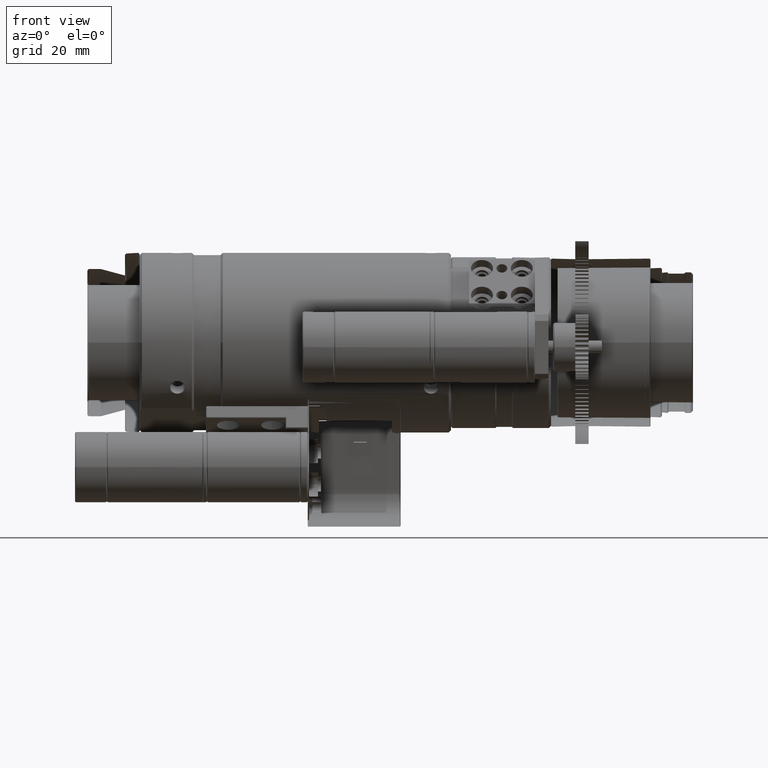
[diagram: clean part render]
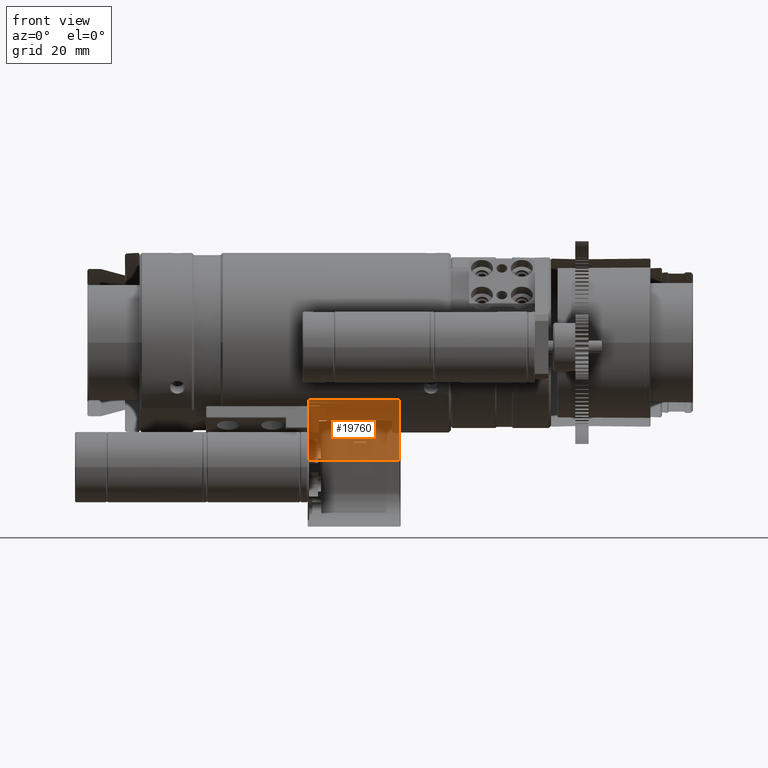
[diagram: same view with one face highlighted and labeled with its STEP entity id]
A machine part, front view. The second image highlights one B-rep face of the part: STEP entity #19760.
In plain terms, the highlighted planar face has unit normal (-0, 0.8746, -0.4848).
Its self-contained STEP definition (entity closure, byte-faithful):
#1320 = EDGE_CURVE ( 'NONE', #30549, #16158, #4926, .T. ) ;
#2126 = CARTESIAN_POINT ( 'NONE',  ( 44.99999999996367000, -16.51575462302595200, -12.83407966092442500 ) ) ;
#2615 = CARTESIAN_POINT ( 'NONE',  ( 44.69999999996367300, -16.80288235657112500, -13.35207180410276500 ) ) ;
#4582 = DIRECTION ( 'NONE',  ( 0.0000000000000000000, 0.4848096202463373900, 0.8746197071393956300 ) ) ;
#4735 = VECTOR ( 'NONE', #25978, 1000.000000000000100 ) ;
#4926 = LINE ( 'NONE', #25625, #4735 ) ;
#6504 = CARTESIAN_POINT ( 'NONE',  ( 44.99999999996367700, -16.80288235657112500, -13.35207180410276500 ) ) ;
#6679 = DIRECTION ( 'NONE',  ( -2.197482234812911300E-015, 0.8746197071393956300, -0.4848096202463373900 ) ) ;
#11790 = VECTOR ( 'NONE', #26027, 1000.000000000000000 ) ;
#11874 = LINE ( 'NONE', #26073, #11790 ) ;
#11918 = DIRECTION ( 'NONE',  ( -1.000000000000000000, -1.921961268656093000E-015, 1.065360527757720400E-015 ) ) ;
#12076 = CARTESIAN_POINT ( 'NONE',  ( 44.69999999996367300, -24.13589001278384000, -26.58116780568146700 ) ) ;
#13473 = VERTEX_POINT ( 'NONE', #2126 ) ;
#15074 = CARTESIAN_POINT ( 'NONE',  ( 44.99999999996367700, -24.13589001278384000, -26.58116780568147100 ) ) ;
#15694 = EDGE_CURVE ( 'NONE', #16158, #27970, #23487, .T. ) ;
#15812 = EDGE_CURVE ( 'NONE', #27970, #13473, #20239, .T. ) ;
#16158 = VERTEX_POINT ( 'NONE', #36377 ) ;
#16542 = EDGE_CURVE ( 'NONE', #13473, #30549, #11874, .T. ) ;
#18670 = CARTESIAN_POINT ( 'NONE',  ( 65.50109939782545600, -16.26263824967216500, -12.86924955425402600 ) ) ;
#19760 = ADVANCED_FACE ( 'NONE', ( #39185 ), #27364, .T. ) ;
#20035 = VECTOR ( 'NONE', #4582, 1000.000000000000000 ) ;
#20239 = LINE ( 'NONE', #6504, #20035 ) ;
#22476 = VECTOR ( 'NONE', #11918, 1000.000000000000000 ) ;
#23487 = LINE ( 'NONE', #12076, #22476 ) ;
#24356 = ORIENTED_EDGE ( 'NONE', *, *, #1320, .T. ) ;
#25625 = CARTESIAN_POINT ( 'NONE',  ( 65.39999999996366900, -16.80288235657107900, -13.35207180410278300 ) ) ;
#25978 = DIRECTION ( 'NONE',  ( 3.594243682781589100E-016, -0.4848096202463373400, -0.8746197071393956300 ) ) ;
#26027 = DIRECTION ( 'NONE',  ( 1.000000000000000000, 1.921961268656093000E-015, -1.065360527757720400E-015 ) ) ;
#26073 = CARTESIAN_POINT ( 'NONE',  ( 44.69999999996367300, -16.51575462302595600, -12.83407966092442500 ) ) ;
#27315 = AXIS2_PLACEMENT_3D ( 'NONE', #2615, #6679, #31253 ) ;
#27364 = PLANE ( 'NONE',  #27315 ) ;
#27970 = VERTEX_POINT ( 'NONE', #15074 ) ;
#30549 = VERTEX_POINT ( 'NONE', #18670 ) ;
#31253 = DIRECTION ( 'NONE',  ( 0.0000000000000000000, 0.4848096202463373900, 0.8746197071393956300 ) ) ;
#34979 = EDGE_LOOP ( 'NONE', ( #24356, #38392, #37889, #41826 ) ) ;
#36377 = CARTESIAN_POINT ( 'NONE',  ( 65.39999999996366900, -24.13589001278379700, -26.58116780568149200 ) ) ;
#37889 = ORIENTED_EDGE ( 'NONE', *, *, #15812, .T. ) ;
#38392 = ORIENTED_EDGE ( 'NONE', *, *, #15694, .T. ) ;
#39185 = FACE_OUTER_BOUND ( 'NONE', #34979, .T. ) ;
#41826 = ORIENTED_EDGE ( 'NONE', *, *, #16542, .T. ) ;